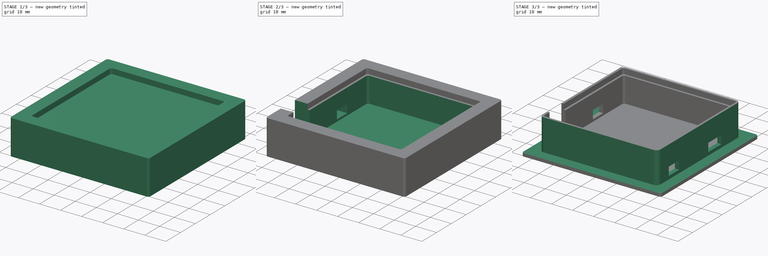
[diagram: build sequence overview — one tinted view per stage of 3, left to right]
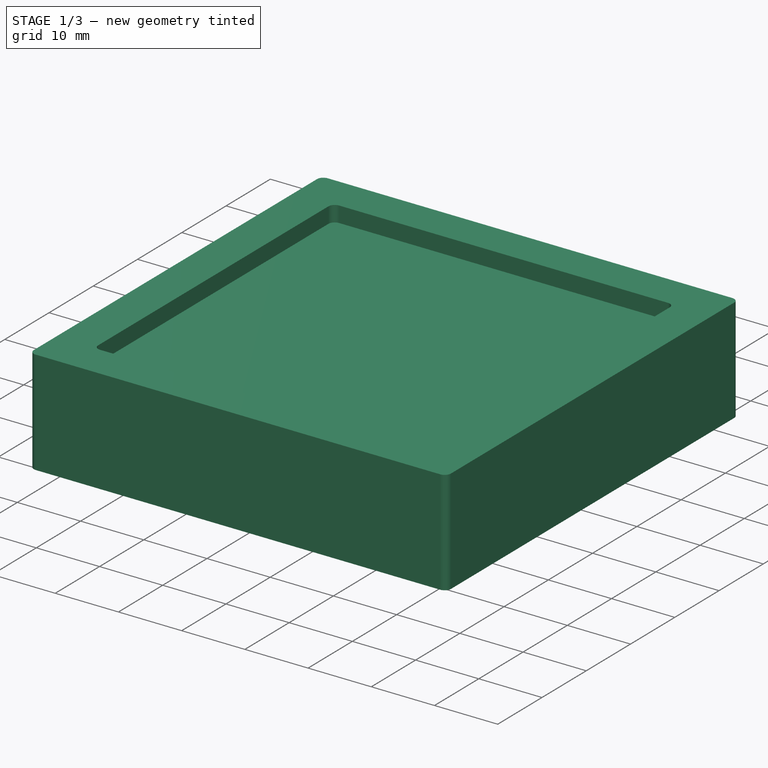
[diagram: stage 1 of 3 — iso view after this stage's code; geometry added in this stage tinted green]
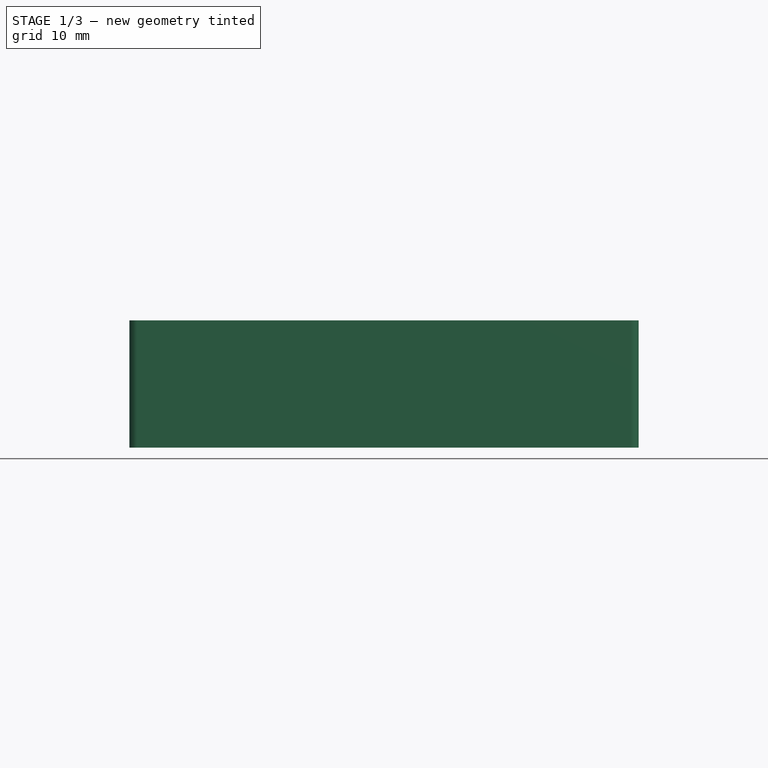
[diagram: stage 1 of 3 — front view after this stage's code; geometry added in this stage tinted green]
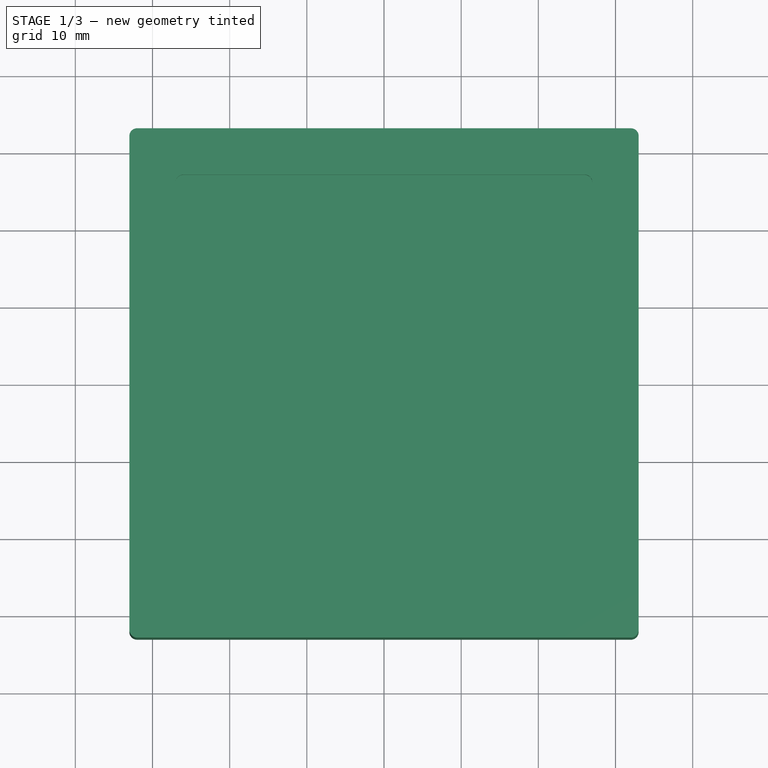
[diagram: stage 1 of 3 — top view after this stage's code; geometry added in this stage tinted green]
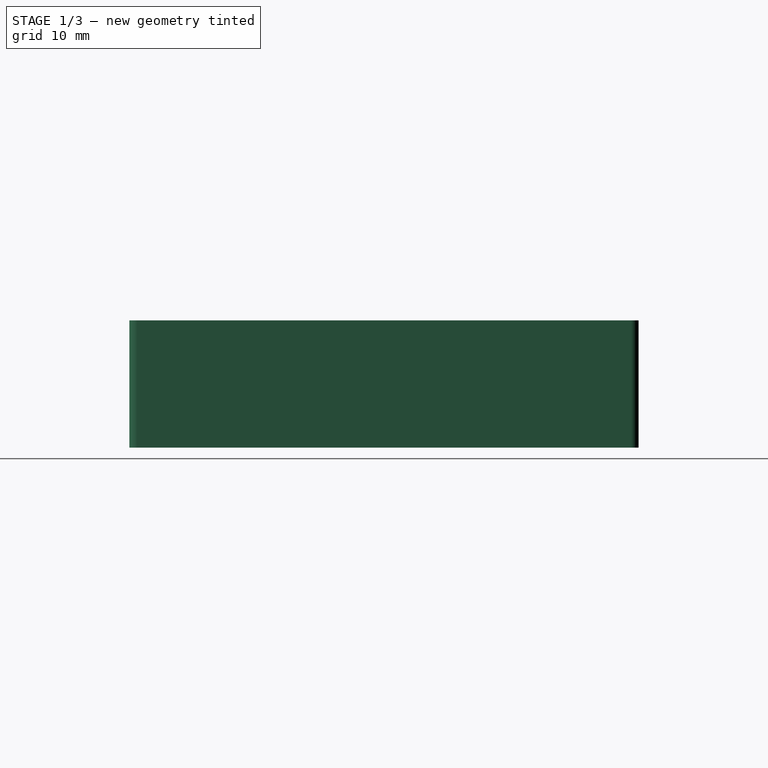
[diagram: stage 1 of 3 — right view after this stage's code; geometry added in this stage tinted green]
FCSTD DOCUMENT  (FreeCAD 0.19R24291 (Git))
Label: Tampa
License: All rights reserved
LicenseURL: http://en.wikipedia.org/wiki/All_rights_reserved
objects: Sketcher::SketchObject×8, PartDesign::Pocket×6, PartDesign::Pad×1, PartDesign::Body×1
note: 23 computed .brp shape members not serialized (recipe doc carries the construction recipe); baked Part::Feature solids carry a one-line shape summary decoded from their .brp

FEATURE [Sketcher::SketchObject] Sketch
  FullyConstrained = true
  MapMode = 5
  Support = -> [XY_Plane]
  sketch-geometry (8):
    g0: LineSegment StartX=-32 StartY=33 StartZ=0 EndX=32 EndY=33 EndZ=0
    g1: LineSegment StartX=33 StartY=32 StartZ=0 EndX=33 EndY=-32 EndZ=0
    g2: LineSegment StartX=32 StartY=-33 StartZ=0 EndX=-32 EndY=-33 EndZ=0
    g3: LineSegment StartX=-33 StartY=-32 StartZ=0 EndX=-33 EndY=32 EndZ=0
    g4: ArcOfCircle CenterX=-32 CenterY=32 CenterZ=0 NormalX=0 NormalY=0 NormalZ=1 AngleXU=0 Radius=1 StartAngle=1.5708 EndAngle=3.14159
    g5: ArcOfCircle CenterX=32 CenterY=32 CenterZ=0 NormalX=0 NormalY=0 NormalZ=1 AngleXU=0 Radius=1 StartAngle=-6.404e-13 EndAngle=1.5708
    g6: ArcOfCircle CenterX=32 CenterY=-32 CenterZ=0 NormalX=0 NormalY=0 NormalZ=1 AngleXU=0 Radius=1 StartAngle=4.71239 EndAngle=6.28319
    g7: ArcOfCircle CenterX=-32 CenterY=-32 CenterZ=0 NormalX=0 NormalY=0 NormalZ=1 AngleXU=0 Radius=1 StartAngle=3.14159 EndAngle=4.71239
  constraints (20):
    c: Horizontal(g0)
    c: Horizontal(g2)
    c: Vertical(g1)
    c: Vertical(g3)
    c: Tangent(g3,g4) = 1.5708
    c: Tangent(g0,g4) = 1.5708
    c: DistanceY(g4,g0) = 1
    c: Tangent(g1,g5) = 1.5708
    c: Tangent(g0,g5) = 1.5708
    c: DistanceX(g5,g1) = 1
    c: Tangent(g2,g6) = 1.5708
    c: Tangent(g1,g6) = 1.5708
    c: DistanceX(g6,g1) = 1
    c: DistanceY(g-1,g0) = 33
    c: DistanceX(g3,g1) = 66
    c: Tangent(g2,g7) = 1.5708
    c: Tangent(g3,g7) = 1.5708
    c: DistanceX(g3,g7) = 1
    c: DistanceY(g2,g0) = 66
    c: DistanceX(g3,g-1) = 33
FEATURE [PartDesign::Pad] Pad
  Direction = (1,1,1)
  Length = 15
  Length2 = 1.5
  Profile = -> Sketch
  Type = 4
FEATURE [Sketcher::SketchObject] Sketch001
  FullyConstrained = true
  MapMode = 5
  Placement = pos=(0,0,15) rot=(0,0,1;0rad)
  Support = -> [Pad]
  sketch-geometry (8):
    g0: LineSegment StartX=-26 StartY=27 StartZ=0 EndX=26 EndY=27 EndZ=0
    g1: LineSegment StartX=27 StartY=26 StartZ=0 EndX=27 EndY=-26 EndZ=0
    g2: LineSegment StartX=26 StartY=-27 StartZ=0 EndX=-26 EndY=-27 EndZ=0
    g3: LineSegment StartX=-27 StartY=-26 StartZ=0 EndX=-27 EndY=26 EndZ=0
    g4: ArcOfCircle CenterX=-26 CenterY=26 CenterZ=0 NormalX=0 NormalY=0 NormalZ=1 AngleXU=0 Radius=1 StartAngle=1.5708 EndAngle=3.14159
    g5: ArcOfCircle CenterX=26 CenterY=26 CenterZ=0 NormalX=0 NormalY=0 NormalZ=1 AngleXU=0 Radius=1 StartAngle=0 EndAngle=1.5708
    g6: ArcOfCircle CenterX=26 CenterY=-26 CenterZ=0 NormalX=0 NormalY=0 NormalZ=1 AngleXU=0 Radius=1 StartAngle=4.71239 EndAngle=6.28319
    g7: ArcOfCircle CenterX=-26 CenterY=-26 CenterZ=0 NormalX=0 NormalY=0 NormalZ=1 AngleXU=0 Radius=1 StartAngle=3.14159 EndAngle=4.71239
  constraints (20):
    c: Horizontal(g0)
    c: Vertical(g1)
    c: Horizontal(g2)
    c: Vertical(g3)
    c: Tangent(g3,g4) = 1.5708
    c: Tangent(g0,g4) = 1.5708
    c: DistanceY(g4,g0) = 1
    c: Tangent(g1,g5) = 1.5708
    c: Tangent(g0,g5) = 1.5708
    c: DistanceX(g5,g1) = 1
    c: Tangent(g2,g6) = 1.5708
    c: Tangent(g1,g6) = 1.5708
    c: DistanceX(g6,g1) = 1
    c: Tangent(g3,g7) = 1.5708
    c: Tangent(g2,g7) = 1.5708
    c: DistanceX(g3,g7) = 1
    c: DistanceY(g2,g0) = 54
    c: DistanceX(g3,g1) = 54
    c: DistanceX(g3,g-1) = 27
    c: DistanceY(g-1,g0) = 27
FEATURE [PartDesign::Pocket] Pocket
  BaseFeature = -> Pad
  Length = 2.5
  Length2 = 100
  Profile = -> Sketch001
  Type = 0
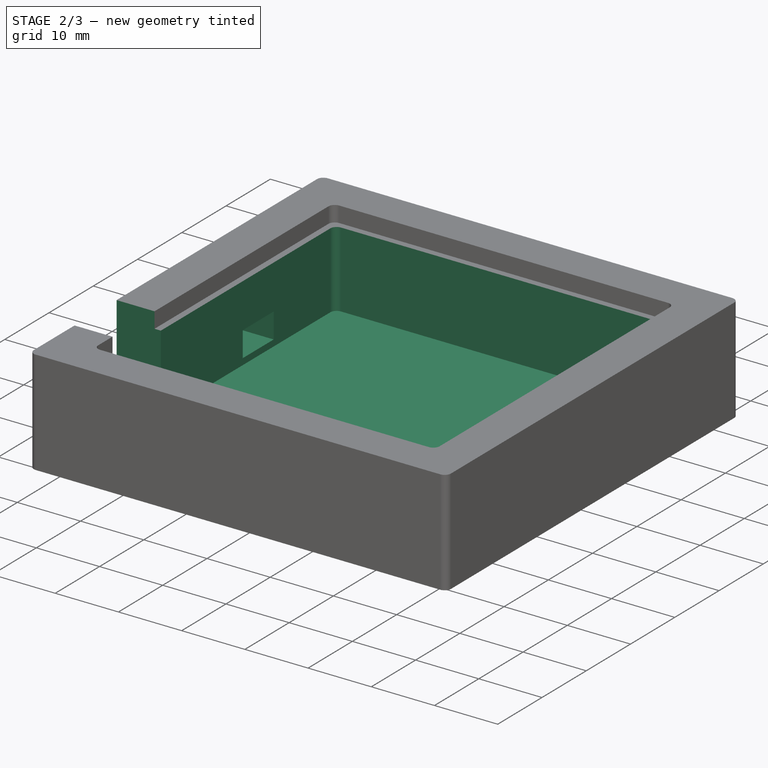
[diagram: stage 2 of 3 — iso view after this stage's code; geometry added in this stage tinted green]
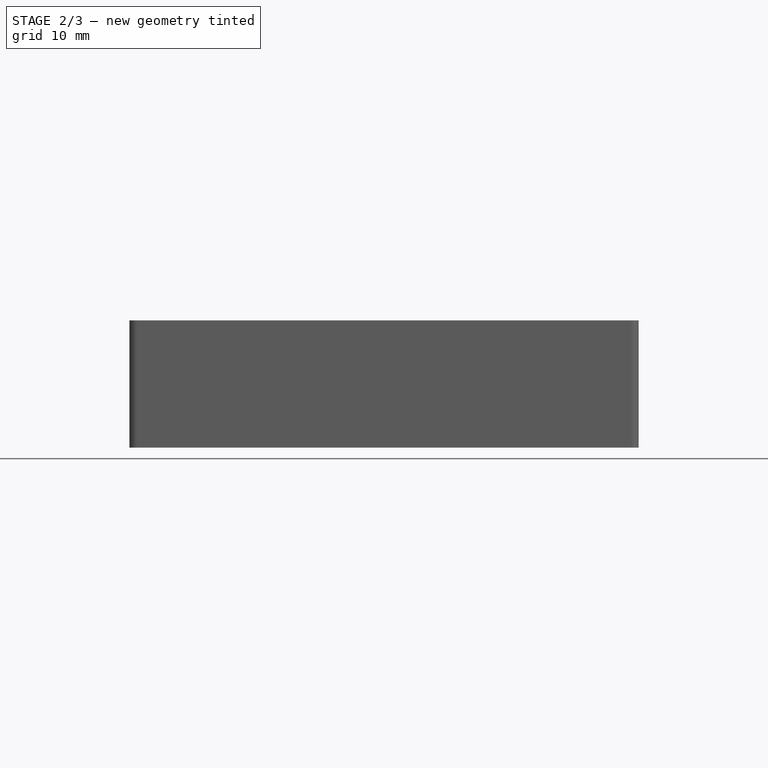
[diagram: stage 2 of 3 — front view after this stage's code; geometry added in this stage tinted green]
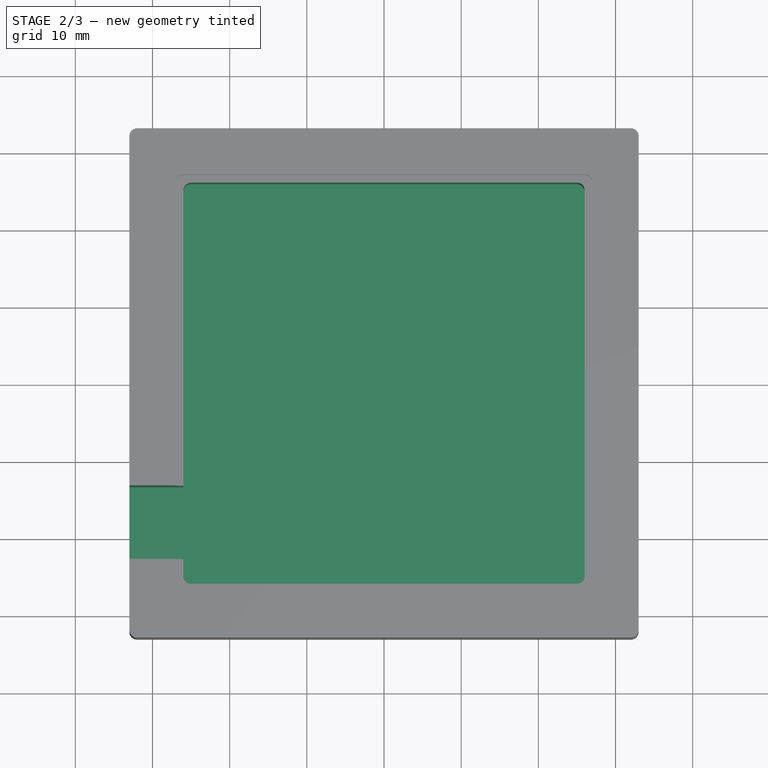
[diagram: stage 2 of 3 — top view after this stage's code; geometry added in this stage tinted green]
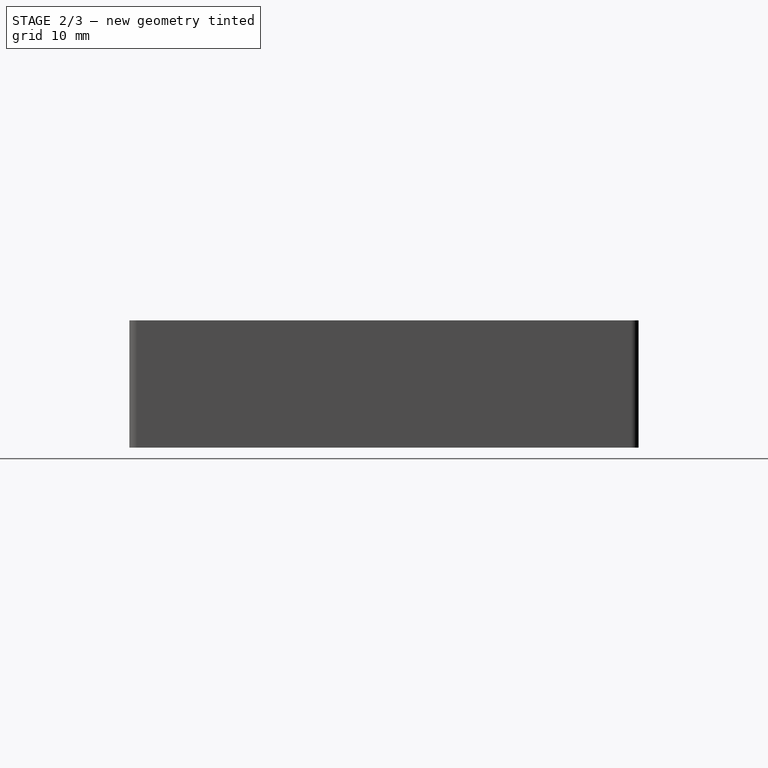
[diagram: stage 2 of 3 — right view after this stage's code; geometry added in this stage tinted green]
FEATURE [Sketcher::SketchObject] Sketch002
  FullyConstrained = true
  MapMode = 5
  Placement = pos=(0,0,12.5) rot=(0,0,1;0rad)
  Support = -> [Pocket]
  sketch-geometry (8):
    g0: LineSegment StartX=-25 StartY=26 StartZ=0 EndX=25 EndY=26 EndZ=0
    g1: LineSegment StartX=26 StartY=25 StartZ=0 EndX=26 EndY=-25 EndZ=0
    g2: LineSegment StartX=25 StartY=-26 StartZ=0 EndX=-25 EndY=-26 EndZ=0
    g3: LineSegment StartX=-26 StartY=-25 StartZ=0 EndX=-26 EndY=25 EndZ=0
    g4: ArcOfCircle CenterX=-25 CenterY=25 CenterZ=0 NormalX=0 NormalY=0 NormalZ=1 AngleXU=0 Radius=1 StartAngle=1.5708 EndAngle=3.14159
    g5: ArcOfCircle CenterX=25 CenterY=25 CenterZ=0 NormalX=0 NormalY=0 NormalZ=1 AngleXU=0 Radius=1 StartAngle=-9e-16 EndAngle=1.5708
    g6: ArcOfCircle CenterX=25 CenterY=-25 CenterZ=0 NormalX=0 NormalY=0 NormalZ=1 AngleXU=0 Radius=1 StartAngle=4.71239 EndAngle=6.28319
    g7: ArcOfCircle CenterX=-25 CenterY=-25 CenterZ=0 NormalX=0 NormalY=0 NormalZ=1 AngleXU=0 Radius=1 StartAngle=3.14159 EndAngle=4.71239
  constraints (20):
    c: Vertical(g3)
    c: Horizontal(g0)
    c: Horizontal(g2)
    c: Vertical(g1)
    c: Tangent(g3,g4) = 1.5708
    c: Tangent(g0,g4) = 1.5708
    c: DistanceX(g3,g4) = 1
    c: Tangent(g1,g5) = 1.5708
    c: Tangent(g0,g5) = 1.5708
    c: DistanceY(g5,g0) = 1
    c: Tangent(g1,g6) = 1.5708
    c: Tangent(g2,g6) = 1.5708
    c: DistanceX(g6,g1) = 1
    c: Tangent(g3,g7) = 1.5708
    c: Tangent(g2,g7) = 1.5708
    c: DistanceX(g3,g7) = 1
    c: DistanceY(g2,g0) = 52
    c: DistanceX(g3,g1) = 52
    c: DistanceX(g3,g-1) = 26
    c: DistanceY(g2,g-1) = 26
FEATURE [PartDesign::Pocket] Pocket001
  BaseFeature = -> Pocket
  Length = 12
  Length2 = 100
  Profile = -> Sketch002
  Type = 0
FEATURE [Sketcher::SketchObject] Sketch003
  FullyConstrained = true
  MapMode = 5
  Placement = pos=(-33,0,0) rot=(0.57735,-0.57735,-0.57735;2.0944rad)
  Support = -> [Pocket001]
  sketch-geometry (4):
    g0: LineSegment StartX=13.29 StartY=15 StartZ=0 EndX=22.79 EndY=15 EndZ=0
    g1: LineSegment StartX=22.79 StartY=15 StartZ=0 EndX=22.79 EndY=1.5 EndZ=0
    g2: LineSegment StartX=22.79 StartY=1.5 StartZ=0 EndX=13.29 EndY=1.5 EndZ=0
    g3: LineSegment StartX=13.29 StartY=1.5 StartZ=0 EndX=13.29 EndY=15 EndZ=0
  constraints (12):
    c: Horizontal(g0)
    c: Coincident(g1,g0)
    c: Coincident(g2,g1)
    c: Horizontal(g2)
    c: Coincident(g3,g0)
    c: Vertical(g1)
    c: Vertical(g3)
    c: DistanceX(g0,g0) = 9.5
    c: Coincident(g3,g2)
    c: DistanceX(g1,g-1) = -22.79
    c: DistanceY(g-1,g1) = 1.5
    c: DistanceY(g2,g0) = 13.5
FEATURE [PartDesign::Pocket] Pocket002
  BaseFeature = -> Pocket001
  Length = 7
  Length2 = 100
  Profile = -> Sketch003
  Type = 0
FEATURE [Sketcher::SketchObject] Sketch004
  FullyConstrained = true
  MapMode = 5
  Placement = pos=(-33,0,0) rot=(0.57735,-0.57735,-0.57735;2.0944rad)
  Support = -> [Pocket002]
  sketch-geometry (4):
    g0: LineSegment StartX=-5.21 StartY=1.5 StartZ=0 EndX=-12.21 EndY=1.5 EndZ=0
    g1: LineSegment StartX=-12.21 StartY=1.5 StartZ=0 EndX=-12.21 EndY=5.5 EndZ=0
    g2: LineSegment StartX=-12.21 StartY=5.5 StartZ=0 EndX=-5.21 EndY=5.5 EndZ=0
    g3: LineSegment StartX=-5.21 StartY=5.5 StartZ=0 EndX=-5.21 EndY=1.5 EndZ=0
  constraints (12):
    c: Coincident(g0,g1)
    c: Coincident(g1,g2)
    c: Coincident(g2,g3)
    c: Coincident(g3,g0)
    c: Horizontal(g0)
    c: Horizontal(g2)
    c: Vertical(g1)
    c: Vertical(g3)
    c: DistanceX(g0,g0) = 7
    c: DistanceY(g0,g1) = 4
    c: DistanceX(g0,g-1) = 5.21
    c: DistanceY(g-1,g0) = 1.5
FEATURE [PartDesign::Pocket] Pocket003
  BaseFeature = -> Pocket002
  Length = 7
  Length2 = 100
  Profile = -> Sketch004
  Type = 0
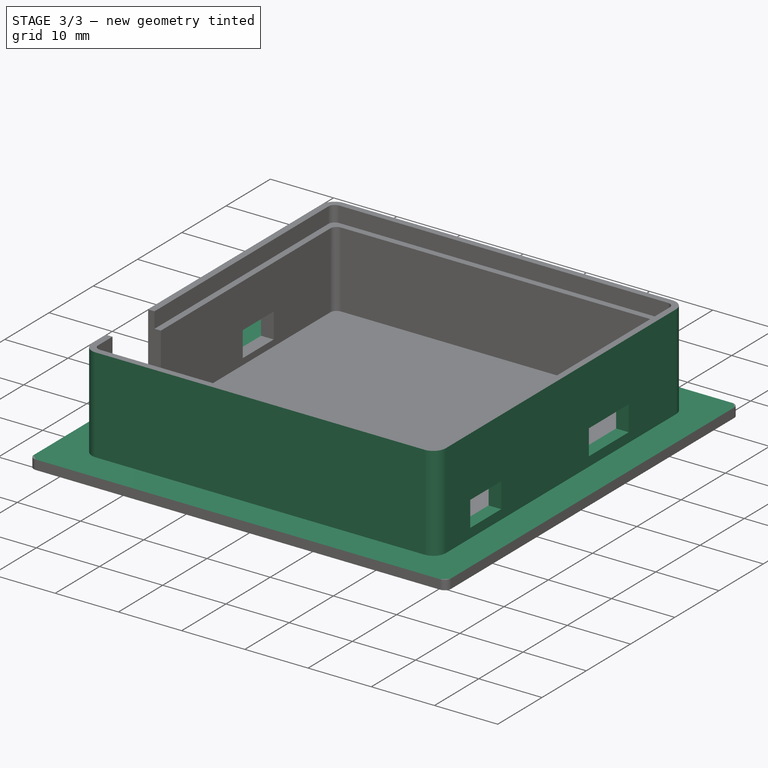
[diagram: stage 3 of 3 — iso view after this stage's code; geometry added in this stage tinted green]
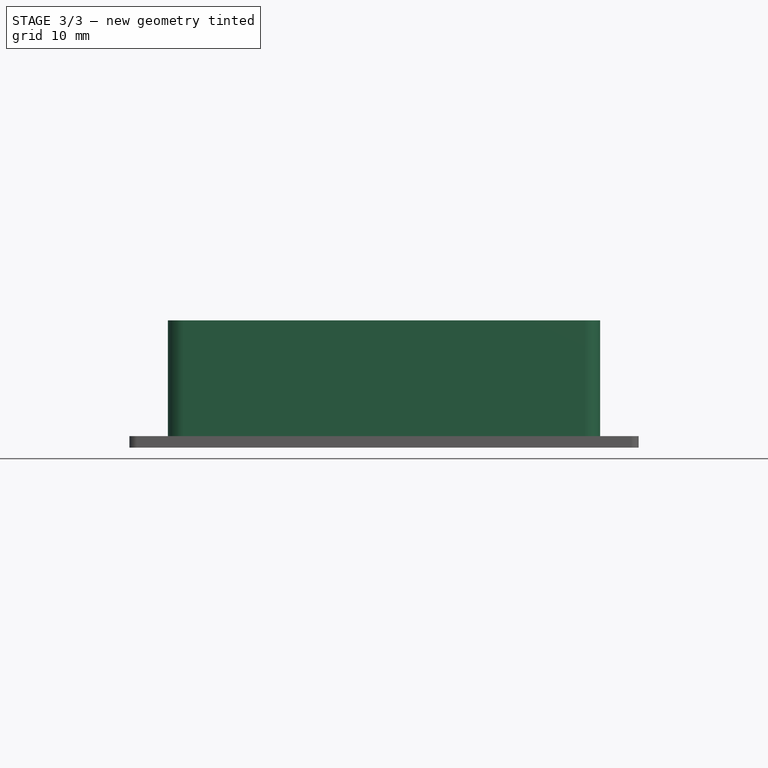
[diagram: stage 3 of 3 — front view after this stage's code; geometry added in this stage tinted green]
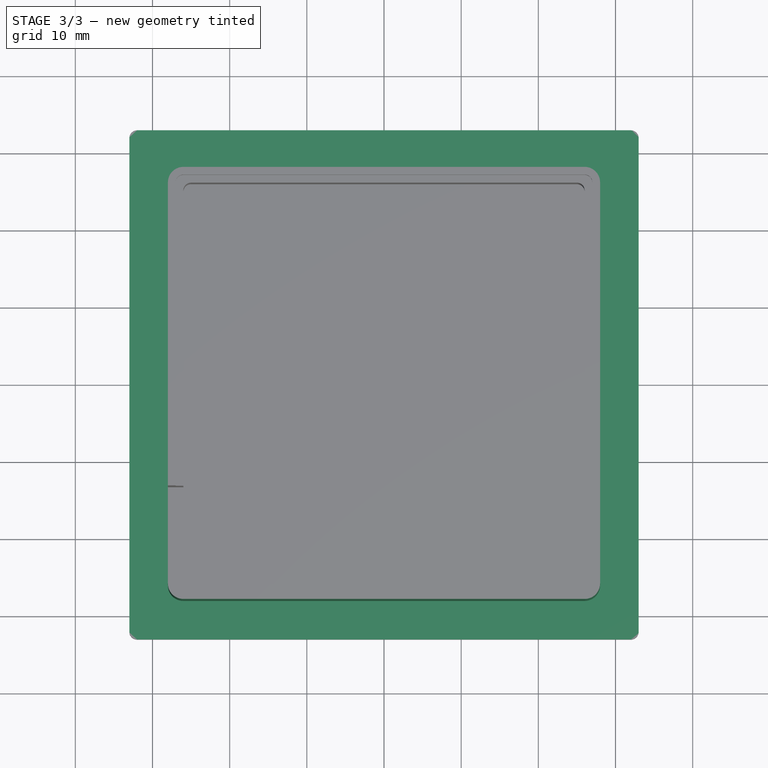
[diagram: stage 3 of 3 — top view after this stage's code; geometry added in this stage tinted green]
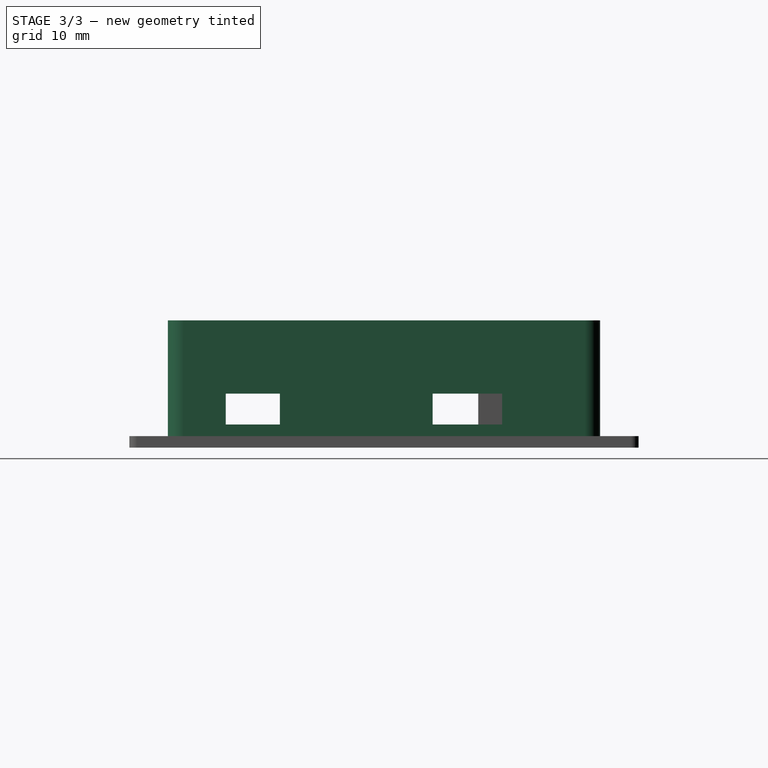
[diagram: stage 3 of 3 — right view after this stage's code; geometry added in this stage tinted green]
FEATURE [Sketcher::SketchObject] Sketch005
  FullyConstrained = true
  MapMode = 5
  Placement = pos=(33,0,0) rot=(0.57735,0.57735,0.57735;2.0944rad)
  Support = -> [Pocket003]
FEATURE [Sketcher::SketchObject] Sketch006
  FullyConstrained = true
  MapMode = 5
  Placement = pos=(33,0,0) rot=(0.57735,0.57735,0.57735;2.0944rad)
  Support = -> [Pocket003]
  sketch-geometry (8):
    g0: LineSegment StartX=-20.5 StartY=5.5 StartZ=0 EndX=-13.5 EndY=5.5 EndZ=0
    g1: LineSegment StartX=-13.5 StartY=5.5 StartZ=0 EndX=-13.5 EndY=1.5 EndZ=0
    g2: LineSegment StartX=-13.5 StartY=1.5 StartZ=0 EndX=-20.5 EndY=1.5 EndZ=0
    g3: LineSegment StartX=-20.5 StartY=1.5 StartZ=0 EndX=-20.5 EndY=5.5 EndZ=0
    g4: LineSegment StartX=6.3 StartY=5.5 StartZ=0 EndX=15.3 EndY=5.5 EndZ=0
    g5: LineSegment StartX=15.3 StartY=5.5 StartZ=0 EndX=15.3 EndY=1.5 EndZ=0
    g6: LineSegment StartX=15.3 StartY=1.5 StartZ=0 EndX=6.3 EndY=1.5 EndZ=0
    g7: LineSegment StartX=6.3 StartY=1.5 StartZ=0 EndX=6.3 EndY=5.5 EndZ=0
  constraints (24):
    c: Coincident(g0,g1)
    c: Coincident(g1,g2)
    c: Coincident(g2,g3)
    c: Coincident(g3,g0)
    c: Horizontal(g0)
    c: Horizontal(g2)
    c: Vertical(g1)
    c: Vertical(g3)
    c: Coincident(g4,g5)
    c: Coincident(g5,g6)
    c: Coincident(g6,g7)
    c: Coincident(g7,g4)
    c: Horizontal(g4)
    c: Horizontal(g6)
    c: Vertical(g5)
    c: Vertical(g7)
    c: DistanceX(g0,g0) = 7
    c: DistanceY(g1,g0) = 4
    c: DistanceY(g6,g4) = 4
    c: DistanceX(g4,g4) = 9
    c: DistanceX(g0,g-1) = 13.5
    c: DistanceX(g-1,g6) = 6.3
    c: DistanceY(g-1,g6) = 1.5
    c: DistanceY(g-1,g1) = 1.5
FEATURE [PartDesign::Pocket] Pocket004
  BaseFeature = -> Pocket003
  Length = 7
  Length2 = 100
  Profile = -> Sketch006
  Type = 0
FEATURE [Sketcher::SketchObject] Sketch007
  FullyConstrained = true
  MapMode = 5
  Placement = pos=(0,0,15) rot=(0,0,1;0rad)
  Support = -> [Pocket004]
  sketch-geometry (12):
    g0: LineSegment StartX=28 StartY=26 StartZ=0 EndX=28 EndY=-26 EndZ=0
    g1: LineSegment StartX=33 StartY=-33 StartZ=0 EndX=33 EndY=33 EndZ=0
    g2: LineSegment StartX=-28 StartY=-26 StartZ=0 EndX=-28 EndY=26 EndZ=0
    g3: LineSegment StartX=26 StartY=28 StartZ=0 EndX=-26 EndY=28 EndZ=0
    g4: LineSegment StartX=-33 StartY=33 StartZ=0 EndX=33 EndY=33 EndZ=0
    g5: ArcOfCircle CenterX=26 CenterY=26 CenterZ=0 NormalX=0 NormalY=0 NormalZ=1 AngleXU=0 Radius=2 StartAngle=1.38e-14 EndAngle=1.5708
    g6: ArcOfCircle CenterX=-26 CenterY=26 CenterZ=0 NormalX=0 NormalY=0 NormalZ=1 AngleXU=0 Radius=2 StartAngle=1.5708 EndAngle=3.14159
    g7: LineSegment StartX=26 StartY=-28 StartZ=0 EndX=-26 EndY=-28 EndZ=0
    g8: ArcOfCircle CenterX=26 CenterY=-26 CenterZ=0 NormalX=0 NormalY=0 NormalZ=1 AngleXU=0 Radius=2 StartAngle=4.71239 EndAngle=6.28319
    g9: ArcOfCircle CenterX=-26 CenterY=-26 CenterZ=0 NormalX=0 NormalY=0 NormalZ=1 AngleXU=0 Radius=2 StartAngle=3.14159 EndAngle=4.71239
    g10: LineSegment StartX=-33 StartY=33 StartZ=0 EndX=-33 EndY=-33 EndZ=0
    g11: LineSegment StartX=-33 StartY=-33 StartZ=0 EndX=33 EndY=-33 EndZ=0
  constraints (32):
    c: Vertical(g0)
    c: Vertical(g1)
    c: Vertical(g2)
    c: Horizontal(g3)
    c: Horizontal(g4)
    c: Tangent(g0,g5) = 1.5708
    c: Tangent(g3,g5) = -1.5708
    c: Coincident(g4,g1)
    c: DistanceY(g-1,g3) = 28
    c: DistanceX(g-1,g0) = 28
    c: Tangent(g2,g6) = 1.5708
    c: Tangent(g3,g6) = -1.5708
    c: DistanceX(g2,g-1) = 28
    c: DistanceX(g5,g0) = 2
    c: DistanceX(g2,g6) = 2
    c: DistanceX(g0,g1) = 5
    c: DistanceX(g4,g1) = 66
    c: DistanceY(g3,g1) = 5
    c: Tangent(g7,g8) = 1.5708
    c: Tangent(g0,g8) = 1.5708
    c: DistanceY(g7,g8) = 2
    c: Tangent(g2,g9) = 1.5708
    c: Tangent(g7,g9) = 1.5708
    c: DistanceX(g2,g9) = 2
    c: DistanceY(g7,g-1) = 28
    c: Horizontal(g7)
    c: Coincident(g10,g4)
    c: Vertical(g10)
    c: Coincident(g11,g10)
    c: Horizontal(g11)
    c: Coincident(g1,g11)
    c: DistanceY(g1,g1) = 66
FEATURE [PartDesign::Pocket] Pocket005
  BaseFeature = -> Pocket004
  Length = 15
  Length2 = 100
  Profile = -> Sketch007
  Type = 0
FEATURE [PartDesign::Body] Body
  Group = -> [Sketch,Pad,Sketch001,Pocket,Sketch002,Pocket001,Sketch003,Pocket002,Sketch004,Pocket003,Sketch005,Sketch006,Pocket004,Sketch007,Pocket005]
  Origin = -> Origin
  Tip = -> Pocket005
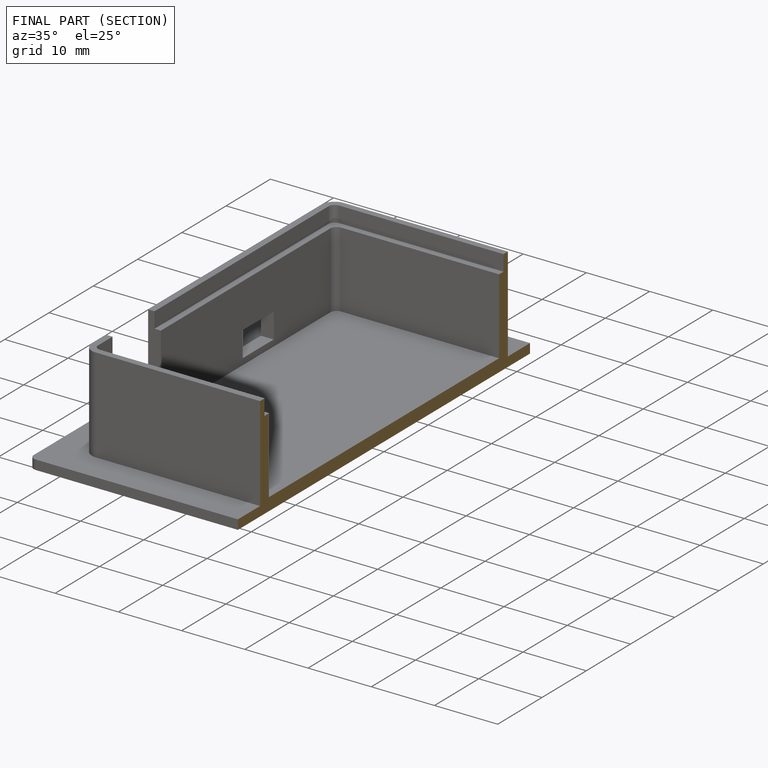
[diagram: finished part — half-section view (interior)]
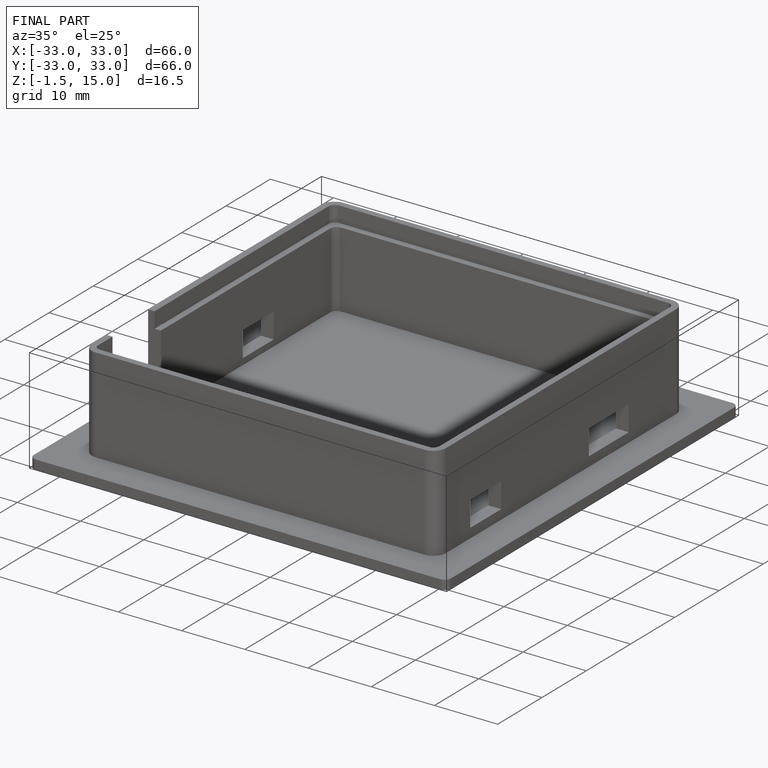
[diagram: finished part — iso view with bounding-box wireframe]
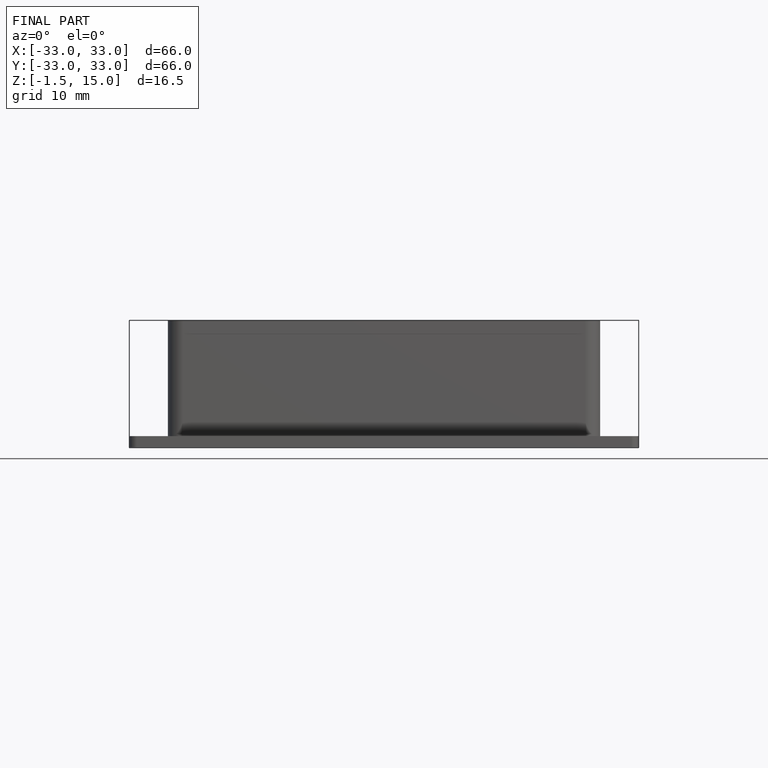
[diagram: finished part — front view with bounding-box wireframe]
